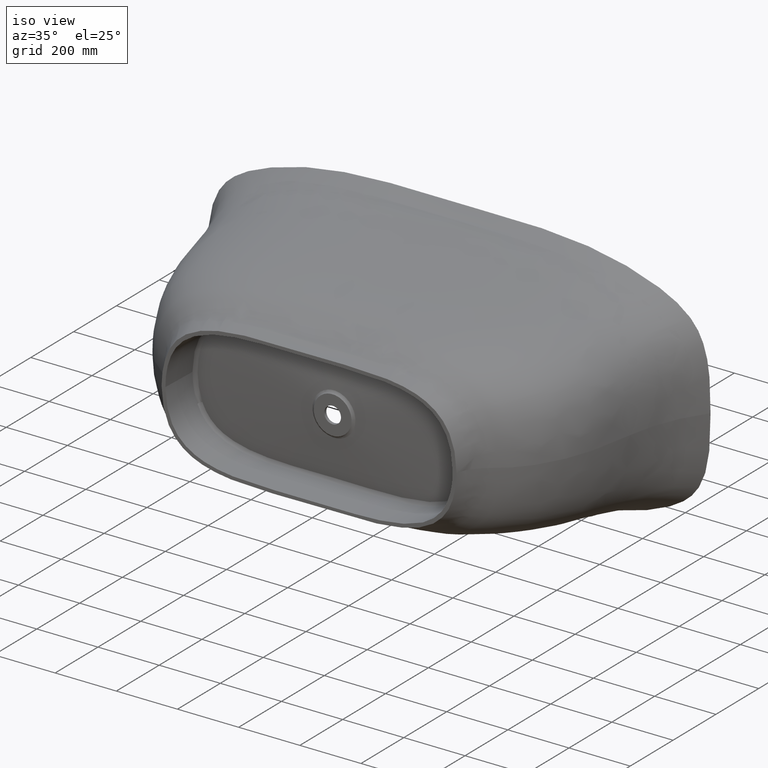
[diagram: clean part render]
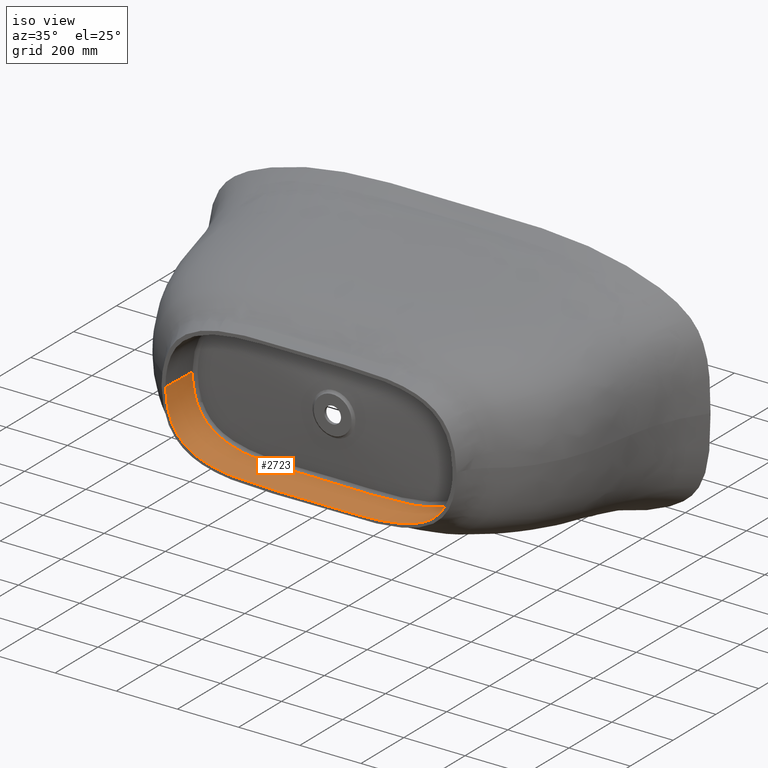
[diagram: same view with one face highlighted and labeled with its STEP entity id]
A machine part, iso view. The second image highlights one B-rep face of the part: STEP entity #2723.
In plain terms, the highlighted face is a freeform B-spline surface patch.
Its self-contained STEP definition (entity closure, byte-faithful):
#62 = VERTEX_POINT ( 'NONE', #833 ) ;
#68 = CARTESIAN_POINT ( 'NONE',  ( -376.7715608276849366, -710.0119999999998299, 174.5475347990533237 ) ) ;
#145 = CARTESIAN_POINT ( 'NONE',  ( 413.0075981817260526, 206.6638280830873668, 101.3229049751743247 ) ) ;
#197 = CARTESIAN_POINT ( 'NONE',  ( 451.5978029508832492, -710.0119999999998299, 96.68693294296983254 ) ) ;
#320 = CARTESIAN_POINT ( 'NONE',  ( 51.10891648714869007, 206.6638280830873668, -178.2907600852788903 ) ) ;
#442 = CARTESIAN_POINT ( 'NONE',  ( 434.2111648860996524, 206.6638280830873668, -43.33343164907506662 ) ) ;
#562 = CARTESIAN_POINT ( 'NONE',  ( -309.2671364566074885, 206.6638280830873668, -164.4931734671001777 ) ) ;
#679 = CARTESIAN_POINT ( 'NONE',  ( 435.1167577818082464, 206.6638280830873668, -37.98907658660973397 ) ) ;
#740 = B_SPLINE_CURVE_WITH_KNOTS ( 'NONE', 3,
 ( #24088, #4762, #29822, #26889, #18567, #1827, #21386, #27010, #10261, #13202, #24447, #15884, #18690, #24327, #7570, #10379, #32753, #13697, #2434, #10873, #13824, #25070, #30063, #22122, #7807, #13323, #30439, #35698, #36068, #19306, #36196, #32999, #35818, #2185, #19430, #33384, #18930, #7933, #32875, #21745, #10621, #22249, #2686, #33253, #30565, #21868, #19177, #16497, #8316, #2310, #5505, #5002, #27492, #16123, #30183, #27746, #5128, #27871, #24947, #2561, #33125, #16623, #8061, #5382, #24570, #24696, #27370, #13446 ),
 .UNSPECIFIED., .F., .F.,
 ( 4, 2, 2, 2, 2, 2, 2, 2, 2, 2, 2, 2, 2, 2, 2, 2, 2, 2, 2, 2, 2, 2, 2, 2, 2, 2, 2, 2, 2, 2, 2, 2, 2, 4 ),
 ( 1.171030030559101931, 1.189394131130387944, 1.207758231701673957, 1.244486432844246204, 1.262850533415532217, 1.281214633986818230, 1.299578734558104243, 1.317942835129390478, 1.354671036271962503, 1.373035136843248516, 1.391399237414534529, 1.428127438557106554, 1.464855639699678802, 1.538312041984823075, 1.611768444269967127, 1.758681248840255673, 1.832137651125399946, 1.905594053410544220, 1.979050455695688271, 2.015778656838260297, 2.052506857980832322, 2.089235059123404792, 2.125963260265976817, 2.162691461408548843, 2.181055561979834856, 2.199419662551120869, 2.236147863693693338, 2.254511964264978907, 2.272876064836265364, 2.291240165407550933, 2.309604265978837390, 2.327968366550123402, 2.337150416835766187, 2.346332467121409415 ),
 .UNSPECIFIED. ) ;
#797 = CARTESIAN_POINT ( 'NONE',  ( -386.7503391534006596, 206.6638280830873668, -130.5836772688949168 ) ) ;
#833 = CARTESIAN_POINT ( 'NONE',  ( 469.6507923050826321, -700.0000000000000000, -1.170464676888103668E-14 ) ) ;
#1108 = CARTESIAN_POINT ( 'NONE',  ( -449.2222300053399522, -579.8923364608669999, -90.34202000697848689 ) ) ;
#1225 = EDGE_CURVE ( 'NONE', #14040, #21337, #8265, .T. ) ;
#1295 = CARTESIAN_POINT ( 'NONE',  ( 385.7898970565166223, -580.0271890706776503, -164.1198892603063655 ) ) ;
#1528 = CARTESIAN_POINT ( 'NONE',  ( 350.2917764492672177, -580.1592021301165687, -180.7665865444316751 ) ) ;
#1640 = CARTESIAN_POINT ( 'NONE',  ( -267.3878075354082284, -580.6178877477559581, -200.1047884652582241 ) ) ;
#1756 = CARTESIAN_POINT ( 'NONE',  ( -327.7184947631772047, -580.2644924022574742, -187.9671111690548742 ) ) ;
#1827 = CARTESIAN_POINT ( 'NONE',  ( -465.3831138142517148, -700.0000000009308678, -50.10130807530593700 ) ) ;
#1878 = CARTESIAN_POINT ( 'NONE',  ( 257.6393538196663826, -580.6882929592369464, -200.8595457994952937 ) ) ;
#1890 = CARTESIAN_POINT ( 'NONE',  ( -442.8801519056331699, -710.0119999999998299, -113.8693873188649803 ) ) ;
#1969 = CARTESIAN_POINT ( 'NONE',  ( -405.0374128871990820, 206.6638280830873668, 112.3316356310609905 ) ) ;
#1997 = CARTESIAN_POINT ( 'NONE',  ( 23.11207708383593484, -581.4733453004566854, -205.5700859492820598 ) ) ;
#2010 = CARTESIAN_POINT ( 'NONE',  ( 99.83273113172840851, -710.0119999999998299, -210.7794236655307714 ) ) ;
#2114 = CARTESIAN_POINT ( 'NONE',  ( 67.85441177709203942, -581.4449887686803322, -205.9790307968852403 ) ) ;
#2128 = CARTESIAN_POINT ( 'NONE',  ( 465.7144026054029382, -710.0119999999998299, -49.06768608442181545 ) ) ;
#2185 = CARTESIAN_POINT ( 'NONE',  ( 99.83570284118538041, -700.0000000009308678, -210.4298092682498975 ) ) ;
#2205 = CARTESIAN_POINT ( 'NONE',  ( -464.2683220892531040, -579.8685786443345478, -25.68061428983065397 ) ) ;
#2241 = CARTESIAN_POINT ( 'NONE',  ( 370.5083966522484502, 206.6638280830873668, 141.5463057779118401 ) ) ;
#2250 = CARTESIAN_POINT ( 'NONE',  ( -340.4308519345618151, -710.0119999999998299, -189.1221887014439176 ) ) ;
#2310 = CARTESIAN_POINT ( 'NONE',  ( 417.0224432563376240, -700.0000000012749979, -145.8916457999397949 ) ) ;
#2360 = CARTESIAN_POINT ( 'NONE',  ( -439.5181817240568876, -579.9081545547177257, -110.5779058334051967 ) ) ;
#2374 = CARTESIAN_POINT ( 'NONE',  ( -428.6277953097380191, -710.0119999999998299, -134.0811464241357385 ) ) ;
#2434 = CARTESIAN_POINT ( 'NONE',  ( -385.5285151820851866, -700.0000000009308678, -169.1357594928779520 ) ) ;
#2502 = CARTESIAN_POINT ( 'NONE',  ( 335.2705097751384073, -710.0119999999998299, 190.5244770372285359 ) ) ;
#2536 = CARTESIAN_POINT ( 'NONE',  ( 298.9020689738924261, 206.6638280830873668, 166.7462151283372123 ) ) ;
#2561 = CARTESIAN_POINT ( 'NONE',  ( 465.3703219540391274, -700.0000000009308678, -49.00505614083378703 ) ) ;
#2627 = CARTESIAN_POINT ( 'NONE',  ( -429.8324375745133352, -710.0119999999998299, 132.6227375921745306 ) ) ;
#2686 = CARTESIAN_POINT ( 'NONE',  ( 319.3081902804913170, -700.0000000009308678, -194.6626758063067086 ) ) ;
#2723 = ADVANCED_FACE ( 'NONE', ( #7960 ), #32079, .T. ) ;
#2754 = CARTESIAN_POINT ( 'NONE',  ( -469.2832082572735430, -710.0119999999998299, 23.65710744243231289 ) ) ;
#2877 = CARTESIAN_POINT ( 'NONE',  ( 429.0055452929105400, -710.0119999999998299, 133.6233990386152470 ) ) ;
#3006 = CARTESIAN_POINT ( 'NONE',  ( 449.0421103843530659, -710.0119999999998299, 102.2989032286504880 ) ) ;
#3129 = CARTESIAN_POINT ( 'NONE',  ( 371.6297284518327615, 206.6638280837683510, -140.8760741786070412 ) ) ;
#3251 = CARTESIAN_POINT ( 'NONE',  ( -355.8009598001967220, 206.6638280830873668, -148.8268574109796418 ) ) ;
#3325 = CARTESIAN_POINT ( 'NONE',  ( 394.6936839480367780, 206.6638280830873668, 123.8049497156852965 ) ) ;
#3331 = CARTESIAN_POINT ( 'NONE',  ( -243.3758129338796721, 206.6638280830873668, 174.9356512454158690 ) ) ;
#3488 = CARTESIAN_POINT ( 'NONE',  ( 100.1048140549735450, 206.6638280830873668, -178.7695288226389607 ) ) ;
#3609 = CARTESIAN_POINT ( 'NONE',  ( -193.4540397969544472, 206.6638280830873668, -178.0418489021328128 ) ) ;
#3846 = CARTESIAN_POINT ( 'NONE',  ( -432.0309691188997476, 206.6638280830873668, -54.78058173366508044 ) ) ;
#3876 = CARTESIAN_POINT ( 'NONE',  ( 453.8760278282592822, -579.8857599918808319, -77.75756323281433424 ) ) ;
#3969 = CARTESIAN_POINT ( 'NONE',  ( -437.7651495002796196, 206.6638280830873668, -11.92612308491679407 ) ) ;
#3996 = CARTESIAN_POINT ( 'NONE',  ( 429.7157192622809134, -579.9278064847279666, -125.2534361444775897 ) ) ;
#3998 = VERTEX_POINT ( 'NONE', #20470 ) ;
#4114 = CARTESIAN_POINT ( 'NONE',  ( 365.8956696617936473, -580.0947037987308477, -174.4145806252917623 ) ) ;
#4229 = CARTESIAN_POINT ( 'NONE',  ( 461.8276096911876039, -579.8736542866081436, -44.84871929742513430 ) ) ;
#4426 = CARTESIAN_POINT ( 'NONE',  ( -465.4261335481315882, -579.8654594194154015, -8.583302500603108953 ) ) ;
#4427 = CARTESIAN_POINT ( 'NONE',  ( -395.1934297502932054, 206.6638280830873668, 122.9220936701846512 ) ) ;
#4457 = CARTESIAN_POINT ( 'NONE',  ( 101.4111077318885492, -581.3908928093683244, -206.2856292831119731 ) ) ;
#4574 = CARTESIAN_POINT ( 'NONE',  ( 285.1889428826188464, -580.5169050472334220, -197.0696332942816582 ) ) ;
#4693 = CARTESIAN_POINT ( 'NONE',  ( 290.6770695643294289, -580.4832722375901994, -196.1533356229200251 ) ) ;
#4706 = CARTESIAN_POINT ( 'NONE',  ( 469.7474604085684859, -710.0119999999998299, -12.33077517495434172 ) ) ;
#4762 = CARTESIAN_POINT ( 'NONE',  ( -469.6263412104416943, -700.0000000009308678, -7.215691214491513072 ) ) ;
#4781 = CARTESIAN_POINT ( 'NONE',  ( -462.1351874121161813, -579.8730554080030970, -42.76389297169192361 ) ) ;
#4811 = CARTESIAN_POINT ( 'NONE',  ( 34.29767283040294501, -581.4700490096952308, -205.6551655339907256 ) ) ;
#4825 = CARTESIAN_POINT ( 'NONE',  ( -194.5810571540745855, -710.0119999999998299, -210.0434240200954434 ) ) ;
#4933 = CARTESIAN_POINT ( 'NONE',  ( -359.4118292855064283, -580.1169273283660459, -177.1592711902859207 ) ) ;
#4946 = CARTESIAN_POINT ( 'NONE',  ( -304.4100161311009742, -710.0119999999998299, -198.3060038446835733 ) ) ;
#5002 = CARTESIAN_POINT ( 'NONE',  ( 433.5432442905049015, -700.0000000009308678, -127.9402543853558569 ) ) ;
#5067 = CARTESIAN_POINT ( 'NONE',  ( 458.3259158283414081, -710.0119999999998299, -78.78457047389275658 ) ) ;
#5128 = CARTESIAN_POINT ( 'NONE',  ( 457.9929550194078161, -700.0000000009308678, -78.67747490082760464 ) ) ;
#5179 = CARTESIAN_POINT ( 'NONE',  ( -442.7932835725847553, -579.9024252033120774, -104.3904115867348281 ) ) ;
#5193 = CARTESIAN_POINT ( 'NONE',  ( 470.0004190493203282, -710.0119999999998299, -3.113315183662955565 ) ) ;
#5323 = CARTESIAN_POINT ( 'NONE',  ( 195.8877148743748364, -710.0119999999998299, 209.9964221297430242 ) ) ;
#5382 = CARTESIAN_POINT ( 'NONE',  ( 469.2468251778417425, -700.0000000009308678, -15.38721870381839274 ) ) ;
#5449 = CARTESIAN_POINT ( 'NONE',  ( -433.6520187748400303, -710.0119999999998299, 127.7515051962391226 ) ) ;
#5505 = CARTESIAN_POINT ( 'NONE',  ( 421.3773514608559481, -700.0000000009308678, -141.5814187130685298 ) ) ;
#5573 = CARTESIAN_POINT ( 'NONE',  ( -417.2470554092918746, -710.0119999999998299, 146.1601025167655337 ) ) ;
#5696 = CARTESIAN_POINT ( 'NONE',  ( -466.1143436967118987, -710.0119999999998299, 48.02998063619369162 ) ) ;
#5822 = CARTESIAN_POINT ( 'NONE',  ( -463.2291411489552502, -710.0119999999998299, -62.16992978657786040 ) ) ;
#5944 = CARTESIAN_POINT ( 'NONE',  ( 26.47748165279315913, 206.6638280830873668, -178.0025676026139365 ) ) ;
#5959 = EDGE_CURVE ( 'NONE', #36241, #21337, #22322, .T. ) ;
#6062 = CARTESIAN_POINT ( 'NONE',  ( 437.6309417614261292, 206.6638280830873668, -13.65484256954129805 ) ) ;
#6178 = CARTESIAN_POINT ( 'NONE',  ( 437.7651585276921082, 206.6638280830873668, -10.93058686483883157 ) ) ;
#6297 = CARTESIAN_POINT ( 'NONE',  ( -240.7461678798429148, 206.6638280830873668, -175.1687831752788327 ) ) ;
#6371 = CARTESIAN_POINT ( 'NONE',  ( -196.1330460264973397, 206.6638280830873668, 177.9447013065093017 ) ) ;
#6415 = CARTESIAN_POINT ( 'NONE',  ( 437.0937308264972216, 206.6638280830873668, -21.81627388730440842 ) ) ;
#6536 = CARTESIAN_POINT ( 'NONE',  ( -422.0141140688901373, 206.6638280830873668, -84.40244761440479238 ) ) ;
#6686 = CARTESIAN_POINT ( 'NONE',  ( 443.2398015776858529, -579.9016719277833545, -103.7252260431782815 ) ) ;
#6891 = CARTESIAN_POINT ( 'NONE',  ( -425.8496574863975752, 206.6638280830873668, -74.82405177100073956 ) ) ;
#7032 = CARTESIAN_POINT ( 'NONE',  ( 458.3948689134163033, -579.8792574936298934, -61.41318380089658291 ) ) ;
#7146 = CARTESIAN_POINT ( 'NONE',  ( 460.2396962383921846, -579.8763613739398579, -53.14668473114883795 ) ) ;
#7260 = CARTESIAN_POINT ( 'NONE',  ( -144.6726928367856715, -581.2590716326940310, -206.3282309912752623 ) ) ;
#7381 = CARTESIAN_POINT ( 'NONE',  ( 317.9705392422570185, -580.3226474693539103, -190.5025531830395096 ) ) ;
#7470 = CARTESIAN_POINT ( 'NONE',  ( -416.0670175694640989, 206.6638280830873668, 96.24455456513663876 ) ) ;
#7476 = ORIENTED_EDGE ( 'NONE', *, *, #24449, .T. ) ;
#7502 = CARTESIAN_POINT ( 'NONE',  ( -300.5127417120835958, -580.4175878552071026, -194.3378496214392044 ) ) ;
#7515 = CARTESIAN_POINT ( 'NONE',  ( 468.3830927258120482, -710.0119999999998299, -30.74749118690845862 ) ) ;
#7570 = CARTESIAN_POINT ( 'NONE',  ( -428.3598642619951420, -700.0000000009308678, -133.8560371254002348 ) ) ;
#7617 = CARTESIAN_POINT ( 'NONE',  ( 334.2025646217946928, -580.2364298058516852, -186.0652522621431331 ) ) ;
#7631 = CARTESIAN_POINT ( 'NONE',  ( 456.3742722023170586, -710.0119999999998299, -84.57675315907397362 ) ) ;
#7739 = CARTESIAN_POINT ( 'NONE',  ( -413.6409867017333681, -579.9587384611231755, -143.1570581818149037 ) ) ;
#7807 = CARTESIAN_POINT ( 'NONE',  ( -304.3406722153810051, -700.0000000009308678, -197.9632005025495403 ) ) ;
#7871 = CARTESIAN_POINT ( 'NONE',  ( 234.6565481645623663, -710.0119999999998299, -207.5582430806442176 ) ) ;
#7933 = CARTESIAN_POINT ( 'NONE',  ( 234.6294861013568323, -700.0000000009308678, -207.2096347927199815 ) ) ;
#7960 = FACE_OUTER_BOUND ( 'NONE', #28480, .T. ) ;
#7988 = CARTESIAN_POINT ( 'NONE',  ( -419.6099333786487477, -579.9470588759581915, -137.2205394612107625 ) ) ;
#8002 = CARTESIAN_POINT ( 'NONE',  ( 283.4413892755522966, -710.0120000013565686, -202.0549941645710419 ) ) ;
#8061 = CARTESIAN_POINT ( 'NONE',  ( 468.6410576021798988, -700.0000000009308678, -24.59017823152164439 ) ) ;
#8132 = CARTESIAN_POINT ( 'NONE',  ( 440.0257461509974632, -710.0119999999998299, 118.5441119428513730 ) ) ;
#8259 = CARTESIAN_POINT ( 'NONE',  ( -172.7179911900752529, -710.0119999999998299, 210.5586310801554930 ) ) ;
#8265 = B_SPLINE_CURVE_WITH_KNOTS ( 'NONE', 1,
 ( #34583, #23568 ),
 .UNSPECIFIED., .F., .F.,
 ( 2, 2 ),
 ( 0.01092207266001174459, 0.1419767800771736255 ),
 .UNSPECIFIED. ) ;
#8316 = CARTESIAN_POINT ( 'NONE',  ( 407.7144207497324828, -700.0000000005867378, -154.0398921242728250 ) ) ;
#8385 = CARTESIAN_POINT ( 'NONE',  ( -469.9759376271804285, -710.0119999999998299, -7.224642196947212547 ) ) ;
#8460 = CARTESIAN_POINT ( 'NONE',  ( 387.3205162740773631, 206.6638280830873668, 130.1422732645711733 ) ) ;
#8510 = CARTESIAN_POINT ( 'NONE',  ( 443.2603073232933752, -710.0119999999998299, 113.2183061456617565 ) ) ;
#8636 = CARTESIAN_POINT ( 'NONE',  ( -342.3000884177357648, -710.0119999999998299, 188.5231508773760254 ) ) ;
#8709 = CARTESIAN_POINT ( 'NONE',  ( 415.5615623674073049, 206.6638280830873668, 97.12229928624009290 ) ) ;
#8874 = CARTESIAN_POINT ( 'NONE',  ( -47.87346585173015967, 206.6638280830873668, -177.9643574846142258 ) ) ;
#8991 = CARTESIAN_POINT ( 'NONE',  ( 232.1788075332324013, 206.6638280830873668, -175.6404653100376549 ) ) ;
#9022 = CARTESIAN_POINT ( 'NONE',  ( 309.9493405875854251, 206.6638280830873668, 164.3332257016086828 ) ) ;
#9107 = CARTESIAN_POINT ( 'NONE',  ( 172.7911373261564734, 206.6638280830873668, -178.5369828138542232 ) ) ;
#9183 = CARTESIAN_POINT ( 'NONE',  ( -99.44287270154667624, 206.6638280830873668, 179.1693412993126628 ) ) ;
#9228 = CARTESIAN_POINT ( 'NONE',  ( 427.8407854570991731, 206.6638280830873668, -68.97914467158830121 ) ) ;
#9466 = CARTESIAN_POINT ( 'NONE',  ( -434.2191840685160287, 206.6638280830873668, -44.32510263780221749 ) ) ;
#9495 = CARTESIAN_POINT ( 'NONE',  ( 465.4555982706609711, -579.8653610554046054, -5.661633878815812260 ) ) ;
#9611 = CARTESIAN_POINT ( 'NONE',  ( 403.2328052066667965, -579.9822172731124965, -152.0995075921980799 ) ) ;
#9612 = CARTESIAN_POINT ( 'NONE',  ( 331.4336817512447624, 206.6638280830873668, 158.2013507170423452 ) ) ;
#9702 = CARTESIAN_POINT ( 'NONE',  ( -432.4487401663842547, 206.6638280830873668, 53.00740847665335309 ) ) ;
#9770 = EDGE_CURVE ( 'NONE', #14040, #62, #740, .T. ) ;
#9843 = CARTESIAN_POINT ( 'NONE',  ( 447.9952321220227986, -579.8940414755428492, -93.54558275710118664 ) ) ;
#9886 = CARTESIAN_POINT ( 'NONE',  ( -50.32603199098451086, 206.6638280830873668, 177.9998177437112759 ) ) ;
#9958 = CARTESIAN_POINT ( 'NONE',  ( 459.6625911467256742, -579.8772993646599616, -55.90681867373864833 ) ) ;
#10072 = CARTESIAN_POINT ( 'NONE',  ( -167.0448976726247565, -581.1711430444427151, -206.0525289556422592 ) ) ;
#10102 = ORIENTED_EDGE ( 'NONE', *, *, #9770, .T. ) ;
#10159 = CARTESIAN_POINT ( 'NONE',  ( -452.0839559198024062, -579.8882210871305460, -83.25948372639628303 ) ) ;
#10192 = CARTESIAN_POINT ( 'NONE',  ( -311.4669632688495540, -580.3538070120908969, -192.0281082956828413 ) ) ;
#10261 = CARTESIAN_POINT ( 'NONE',  ( -455.6377039697582632, -700.0000000009308678, -85.60593332692542390 ) ) ;
#10281 = CARTESIAN_POINT ( 'NONE',  ( -426.3779023973058315, 206.6638280830873668, 73.34050088551477131 ) ) ;
#10311 = CARTESIAN_POINT ( 'NONE',  ( -333.0833038139313089, -580.2367470854809426, -186.4397416658948714 ) ) ;
#10324 = CARTESIAN_POINT ( 'NONE',  ( 354.4705200640512430, -710.0119999999998299, -184.3261277120644195 ) ) ;
#10379 = CARTESIAN_POINT ( 'NONE',  ( -415.7233698053328226, -700.0000000009308678, -147.6567374608010539 ) ) ;
#10430 = CARTESIAN_POINT ( 'NONE',  ( -364.5672954308617477, -580.0966988080142528, -174.9375259355892922 ) ) ;
#10444 = CARTESIAN_POINT ( 'NONE',  ( 246.8788748203795933, -710.0120000006817236, -206.5289856301548639 ) ) ;
#10518 = CARTESIAN_POINT ( 'NONE',  ( -469.6489197588156799, -700.0000000000000000, -1.026521867004593913 ) ) ;
#10552 = CARTESIAN_POINT ( 'NONE',  ( -426.9902663581880802, -579.9326067767026416, -128.8830122281640058 ) ) ;
#10564 = CARTESIAN_POINT ( 'NONE',  ( -316.6001646556476885, -710.0119999999998299, -195.6759926075354770 ) ) ;
#10601 = ORIENTED_EDGE ( 'NONE', *, *, #13426, .T. ) ;
#10621 = CARTESIAN_POINT ( 'NONE',  ( 283.3878382794098343, -700.0000000022877202, -201.7093661794739887 ) ) ;
#10674 = CARTESIAN_POINT ( 'NONE',  ( -416.6672716192622943, -579.9527955178289176, -140.2193239983809008 ) ) ;
#10687 = CARTESIAN_POINT ( 'NONE',  ( -243.5014258625560331, -710.0119999999998299, -207.0714403032904727 ) ) ;
#10815 = CARTESIAN_POINT ( 'NONE',  ( -385.7026859569031103, -710.0119999999998299, -169.4391138519382025 ) ) ;
#10873 = CARTESIAN_POINT ( 'NONE',  ( -374.5688619978899965, -700.0000000009308678, -174.9788711862006494 ) ) ;
#10926 = CARTESIAN_POINT ( 'NONE',  ( -444.6796239020138728, -579.8992853209974783, -100.6204435961592196 ) ) ;
#10943 = CARTESIAN_POINT ( 'NONE',  ( -469.7475358132333554, -710.0119999999998299, -13.45370005044425099 ) ) ;
#11071 = CARTESIAN_POINT ( 'NONE',  ( -465.7272471687770121, -710.0119999999998299, -50.16509287298240594 ) ) ;
#11195 = CARTESIAN_POINT ( 'NONE',  ( -306.6436628577872625, -710.0119999999998299, 197.8440270463048876 ) ) ;
#11323 = CARTESIAN_POINT ( 'NONE',  ( -98.98745972474389987, -710.0119999999998299, 211.1853945095407994 ) ) ;
#11451 = CARTESIAN_POINT ( 'NONE',  ( -458.5670728764282558, -710.0119999999998299, 78.03999808910157299 ) ) ;
#11571 = CARTESIAN_POINT ( 'NONE',  ( -341.1149128451457955, 206.6638280830873668, -155.0877447992606903 ) ) ;
#11648 = CARTESIAN_POINT ( 'NONE',  ( -362.3530196875227034, 206.6638280830873668, 145.9151289602578743 ) ) ;
#11764 = CARTESIAN_POINT ( 'NONE',  ( -172.0821237486206599, 206.6638280830873668, 178.5518545505606482 ) ) ;
#11805 = CARTESIAN_POINT ( 'NONE',  ( 196.7403793648122985, 206.6638280830873668, -177.9221074294414393 ) ) ;
#11927 = CARTESIAN_POINT ( 'NONE',  ( -394.1960627451845198, 206.6638280830873668, -124.2833768290894199 ) ) ;
#12045 = CARTESIAN_POINT ( 'NONE',  ( 413.5603663743934817, 206.6638280830873668, -101.0003083958711443 ) ) ;
#12361 = CARTESIAN_POINT ( 'NONE',  ( 170.7482744215075172, 206.6638280830873668, 178.5779317664690780 ) ) ;
#12405 = CARTESIAN_POINT ( 'NONE',  ( -437.9676890416158130, 206.6638280830873668, -6.405110709182587847 ) ) ;
#12432 = CARTESIAN_POINT ( 'NONE',  ( 355.5539885433111635, -580.1363599890952401, -178.7713096120784542 ) ) ;
#12548 = CARTESIAN_POINT ( 'NONE',  ( 457.3628825119071735, -579.8808114033855645, -65.53405984602805745 ) ) ;
#12661 = CARTESIAN_POINT ( 'NONE',  ( 421.0629035241050815, -579.9452192158853450, -136.2719544011458481 ) ) ;
#12773 = CARTESIAN_POINT ( 'NONE',  ( 323.3963119934342672, -580.2928043476533730, -189.1331661592213038 ) ) ;
#12890 = CARTESIAN_POINT ( 'NONE',  ( -245.1691967272961108, -580.7592665484545478, -202.3450523163674859 ) ) ;
#13009 = CARTESIAN_POINT ( 'NONE',  ( 224.3535987773494753, -580.8894060514104467, -203.7641869337706169 ) ) ;
#13131 = CARTESIAN_POINT ( 'NONE',  ( -348.9922063069421370, -580.1608000362787152, -181.2422504125896410 ) ) ;
#13145 = CARTESIAN_POINT ( 'NONE',  ( 342.8749923086414242, -710.0119999999998299, -188.3323995335479992 ) ) ;
#13202 = CARTESIAN_POINT ( 'NONE',  ( -451.0109480245071722, -700.0000000009308678, -97.16020207074650727 ) ) ;
#13252 = CARTESIAN_POINT ( 'NONE',  ( 268.6881056934769845, -580.6188950282588621, -199.5536602680595593 ) ) ;
#13323 = CARTESIAN_POINT ( 'NONE',  ( -267.8768235592785345, -700.0000000009308678, -204.3504323337100175 ) ) ;
#13342 = CARTESIAN_POINT ( 'NONE',  ( -449.2222300053399522, -579.8923364608669999, -90.34202000697848689 ) ) ;
#13374 = CARTESIAN_POINT ( 'NONE',  ( -447.0625514985928817, -579.8955143556077019, -95.51141320004128943 ) ) ;
#13386 = CARTESIAN_POINT ( 'NONE',  ( 417.2633697734539169, -710.0120000003440737, -146.1454037360204552 ) ) ;
#13426 = EDGE_CURVE ( 'NONE', #3998, #36241, #17604, .T. ) ;
#13446 = CARTESIAN_POINT ( 'NONE',  ( 469.6507923050826321, -700.0000000000000000, -1.170464676888103668E-14 ) ) ;
#13497 = CARTESIAN_POINT ( 'NONE',  ( -448.1743713313312583, -579.8938433592193178, -92.93538404582091061 ) ) ;
#13510 = CARTESIAN_POINT ( 'NONE',  ( -406.5110684780586325, -710.0119999999998299, -155.8726990529084162 ) ) ;
#13638 = CARTESIAN_POINT ( 'NONE',  ( -439.6501699260051055, -710.0119999999998299, -119.1247187404515699 ) ) ;
#13697 = CARTESIAN_POINT ( 'NONE',  ( -390.8986537229084774, -700.0000000009308678, -165.9365121143151214 ) ) ;
#13750 = CARTESIAN_POINT ( 'NONE',  ( -445.2887444049438272, -579.8983063008238332, -99.34670762599920124 ) ) ;
#13767 = CARTESIAN_POINT ( 'NONE',  ( 463.4141375939136651, -710.0119999999998299, 61.41714567541310998 ) ) ;
#13824 = CARTESIAN_POINT ( 'NONE',  ( -368.9876500831740600, -700.0000000009308678, -177.6236690127888096 ) ) ;
#13893 = CARTESIAN_POINT ( 'NONE',  ( -246.2482478354382636, -710.0119999999998299, 206.8285876641177481 ) ) ;
#14017 = CARTESIAN_POINT ( 'NONE',  ( -354.1328888757051345, -710.0119999999998299, 184.4521688813153730 ) ) ;
#14040 = VERTEX_POINT ( 'NONE', #10518 ) ;
#14141 = CARTESIAN_POINT ( 'NONE',  ( 341.2204984172340687, -710.0119999999998299, 188.6881669565896971 ) ) ;
#14263 = CARTESIAN_POINT ( 'NONE',  ( 398.6271954685706191, 206.6638280830873668, -119.5219788282310276 ) ) ;
#14340 = CARTESIAN_POINT ( 'NONE',  ( 420.1609611131617612, 206.6638280830873668, 88.43596267641500219 ) ) ;
#14502 = CARTESIAN_POINT ( 'NONE',  ( -298.0610457584403434, 206.6638280830873668, -166.9197136379692665 ) ) ;
#14618 = CARTESIAN_POINT ( 'NONE',  ( 469.6507923050826321, -700.0000000000000000, -1.170464676888103668E-14 ) ) ;
#14621 = CARTESIAN_POINT ( 'NONE',  ( 300.8962860673952378, 206.6638280844440771, -166.3307167674072105 ) ) ;
#14741 = CARTESIAN_POINT ( 'NONE',  ( 278.5383825098554667, 206.6638280817306565, -170.4100861065406036 ) ) ;
#14770 = CARTESIAN_POINT ( 'NONE',  ( 326.1205940650193043, 206.6638280830873668, 159.8429838511552532 ) ) ;
#15029 = CARTESIAN_POINT ( 'NONE',  ( 426.0046947535179243, 206.6638280830873668, 74.38954370638366242 ) ) ;
#15119 = CARTESIAN_POINT ( 'NONE',  ( 436.1320933480221811, -579.9150438543742894, -115.9678241661668636 ) ) ;
#15209 = CARTESIAN_POINT ( 'NONE',  ( -437.3512837691027357, 206.6638280830873668, 20.97646211231088742 ) ) ;
#15235 = CARTESIAN_POINT ( 'NONE',  ( 440.5898492472704788, -579.9064327922244502, -108.7023236243475424 ) ) ;
#15465 = CARTESIAN_POINT ( 'NONE',  ( 398.7057259037257495, -579.9928779353364234, -155.5165468544317946 ) ) ;
#15578 = CARTESIAN_POINT ( 'NONE',  ( 157.3389999765993821, -581.2217414054423443, -206.2006824687796609 ) ) ;
#15694 = CARTESIAN_POINT ( 'NONE',  ( 307.0849096568882146, -580.3849038873810287, -192.9936375736988907 ) ) ;
#15782 = CARTESIAN_POINT ( 'NONE',  ( -460.1678014301100461, -579.8764531234266997, -54.01787732204501680 ) ) ;
#15813 = CARTESIAN_POINT ( 'NONE',  ( -294.9955346624987556, -580.4506074919095227, -195.3812120250186979 ) ) ;
#15827 = CARTESIAN_POINT ( 'NONE',  ( 449.3814383481744699, -710.0119999999998299, -101.5903015495301531 ) ) ;
#15859 = CARTESIAN_POINT ( 'NONE',  ( 427.6912519732538840, 206.6638280830873668, 69.44981992155773298 ) ) ;
#15884 = CARTESIAN_POINT ( 'NONE',  ( -442.5784790240611528, -700.0000000009308678, -113.6921206802009436 ) ) ;
#15902 = CARTESIAN_POINT ( 'NONE',  ( -463.4466178800059879, -579.8704314657909435, -33.29666203240227418 ) ) ;
#15904 = CARTESIAN_POINT ( 'NONE',  ( -408.0177404132803076, 206.6638280830873668, 108.5312090191739571 ) ) ;
#15933 = CARTESIAN_POINT ( 'NONE',  ( -211.7394814922083413, -580.9510980665205579, -204.5244278131555973 ) ) ;
#15946 = CARTESIAN_POINT ( 'NONE',  ( 421.6285741905140299, -710.0119999999998299, -141.8250140846553506 ) ) ;
#16051 = CARTESIAN_POINT ( 'NONE',  ( -66.37283659772624844, -581.4440553684864881, -205.9963415277324259 ) ) ;
#16065 = CARTESIAN_POINT ( 'NONE',  ( 50.75543084269978067, -710.0119999999998299, -210.2998594919752691 ) ) ;
#16096 = CARTESIAN_POINT ( 'NONE',  ( 241.9472322200774386, 206.6638280830873668, 175.0628495708235732 ) ) ;
#16123 = CARTESIAN_POINT ( 'NONE',  ( 449.0652729482571317, -700.0000000009308678, -101.4404063030927432 ) ) ;
#16186 = CARTESIAN_POINT ( 'NONE',  ( 307.4848727722190347, -710.0119999986432049, -197.6680779624766728 ) ) ;
#16301 = CARTESIAN_POINT ( 'NONE',  ( 361.3951397840218647, 206.6638280830873668, 146.3932942861572144 ) ) ;
#16311 = CARTESIAN_POINT ( 'NONE',  ( 451.9022309582962862, -710.0119999999998299, -95.97967949593977721 ) ) ;
#16439 = CARTESIAN_POINT ( 'NONE',  ( 358.6678646208911232, -710.0119999999998299, 182.4283650701507895 ) ) ;
#16497 = CARTESIAN_POINT ( 'NONE',  ( 402.8415558619838066, -700.0000000012714736, -157.8068854256846976 ) ) ;
#16550 = CARTESIAN_POINT ( 'NONE',  ( -415.6696813392838976, -579.9547444801889924, -141.2067245524772545 ) ) ;
#16566 = CARTESIAN_POINT ( 'NONE',  ( 469.1878448875093000, -710.0119999999998299, 24.79798711144105994 ) ) ;
#16623 = CARTESIAN_POINT ( 'NONE',  ( 468.0354919854023024, -700.0000000009308678, -30.70905709843546560 ) ) ;
#16697 = CARTESIAN_POINT ( 'NONE',  ( -456.5950258950674652, -710.0119999999998299, 83.95783656400939776 ) ) ;
#16820 = CARTESIAN_POINT ( 'NONE',  ( 407.2243033051691441, -710.0119999999998299, 155.3217646827990279 ) ) ;
#16903 = CARTESIAN_POINT ( 'NONE',  ( -371.4057322921738091, 206.6638280830873668, 141.0184681827912527 ) ) ;
#16946 = CARTESIAN_POINT ( 'NONE',  ( 171.3573675339696933, -710.0119999999998299, 210.5851531161135313 ) ) ;
#17069 = CARTESIAN_POINT ( 'NONE',  ( 124.4608766653847596, 206.6638280830873668, -178.9652422824786697 ) ) ;
#17189 = CARTESIAN_POINT ( 'NONE',  ( 470.0004190488882045, -710.0119999999998299, 12.45326073465176897 ) ) ;
#17306 = CARTESIAN_POINT ( 'NONE',  ( 362.6386673074537725, 206.6638280830873668, -145.7709685941773046 ) ) ;
#17424 = CARTESIAN_POINT ( 'NONE',  ( 243.8933009564347287, 206.6638280824055300, -174.6517249187144785 ) ) ;
#17542 = CARTESIAN_POINT ( 'NONE',  ( 387.8230184782317451, 206.6638280834314969, -129.3738241764677070 ) ) ;
#17604 = B_SPLINE_CURVE_WITH_KNOTS ( 'NONE', 3,
 ( #35037, #9495, #34569, #20618, #23671, #31867, #4229, #7146, #9958, #29283, #7032, #26592, #12548, #20736, #3876, #23439, #9843, #6686, #15235, #18044, #15119, #26249, #29049, #29398, #3996, #12661, #32215, #9611, #34691, #17926, #15465, #23556, #29167, #1295, #18272, #21083, #4114, #12432, #1528, #24018, #35265, #29749, #21317, #7617, #32328, #12773, #7381, #15694, #26940, #4693, #4574, #13252, #1878, #18618, #13009, #24139, #35626, #26820, #15578, #21555, #35149, #4457, #27059, #2114, #24257, #4811, #1997, #29512, #18384, #32445, #18859, #21199, #16051, #24376, #27179, #18499, #7260, #10072, #29628, #21437, #15933, #12890, #1640, #15813, #7502, #10192, #32564, #1756, #10311, #29872, #13131, #21675, #4933, #32684, #10430, #35385, #35505, #18740, #29992, #24498, #32803, #27300, #7739, #16550, #10674, #7988, #30491, #10552, #35868, #24748, #2360, #5179, #30114, #10926, #13750, #13374, #13497, #36122 ),
 .UNSPECIFIED., .F., .F.,
 ( 4, 2, 2, 2, 2, 2, 2, 2, 2, 2, 2, 2, 2, 2, 2, 2, 2, 2, 2, 2, 2, 2, 2, 2, 2, 2, 2, 2, 2, 2, 2, 2, 2, 2, 2, 2, 2, 2, 2, 2, 2, 2, 2, 2, 2, 2, 2, 2, 2, 2, 2, 2, 2, 2, 2, 2, 2, 2, 4 ),
 ( 4.028750265771317230E-08, 0.01685896250851787528, 0.03371788472953309024, 0.05057680695054829478, 0.05900626806105592481, 0.06322099861630973983, 0.06743572917156356872, 0.08429465139257895367, 0.1011535736135943664, 0.1180124958346097652, 0.1222272263898636080, 0.1264419569451174785, 0.1348714180556251363, 0.1685892624976557397, 0.1728039930529094714, 0.1770187236081632032, 0.1854481847186706944, 0.2023071069396857602, 0.2191660291607007982, 0.2360249513817158362, 0.2402396819369695680, 0.2444544124922233275, 0.2528838736027308465, 0.2697427958237458290, 0.2866017180447608670, 0.3034606402657759050, 0.3371784847078059810, 0.3708963291498360570, 0.4046141735918661331, 0.4383320180338962646, 0.4720498624759262851, 0.5057677069179563611, 0.5394855513599863261, 0.5732033958020164022, 0.5900623180230314402, 0.6069212402440463672, 0.6743569291281065192, 0.7080747735701365952, 0.7417926180121666713, 0.7755104624541967473, 0.8092283068962268233, 0.8766639957802870864, 0.8935229180013021244, 0.9103818402223172734, 0.9272407624433323114, 0.9440996846643474605, 0.9525291457748549240, 0.9567438763301089333, 0.9609586068853628316, 0.9778175291063783137, 1.011535373548409167, 1.015750104103662954, 1.019964834658916741, 1.028394295769424316, 1.045253217990439021, 1.062112140211453948, 1.066326870766707513, 1.070541601321961300, 1.078971062432468653 ),
 .UNSPECIFIED. ) ;
#17658 = CARTESIAN_POINT ( 'NONE',  ( -412.7146389163410163, 206.6638280830873668, -101.7759198513376901 ) ) ;
#17926 = CARTESIAN_POINT ( 'NONE',  ( 399.8524610464653506, -579.9901115678778751, -154.6749646175635746 ) ) ;
#17974 = CARTESIAN_POINT ( 'NONE',  ( 194.7275021715206549, 206.6638280830873668, 177.9957715577747877 ) ) ;
#18044 = CARTESIAN_POINT ( 'NONE',  ( 436.8910858549209024, -579.9135631937564312, -114.7637325656791916 ) ) ;
#18245 = CARTESIAN_POINT ( 'NONE',  ( -398.6282168188930655, 206.6638280830873668, 119.5236122220628943 ) ) ;
#18272 = CARTESIAN_POINT ( 'NONE',  ( 380.9229119585666581, -580.0420066040486518, -166.9071053269806271 ) ) ;
#18384 = CARTESIAN_POINT ( 'NONE',  ( 0.7408406952306366700, -581.4744287303702777, -205.5070934308252220 ) ) ;
#18499 = CARTESIAN_POINT ( 'NONE',  ( -133.4868026879342153, -581.2966175400678139, -206.3723008300783022 ) ) ;
#18567 = CARTESIAN_POINT ( 'NONE',  ( -467.9038668865814543, -700.0000000009308678, -31.87253912284706558 ) ) ;
#18618 = CARTESIAN_POINT ( 'NONE',  ( 235.4723821234363754, -580.8234510586407850, -202.9668598572876874 ) ) ;
#18631 = CARTESIAN_POINT ( 'NONE',  ( 26.21697727519888588, -710.0119999999998299, -210.0134632443684950 ) ) ;
#18664 = CARTESIAN_POINT ( 'NONE',  ( 432.1881376053652843, 206.6638280830873668, 54.14046342116574095 ) ) ;
#18665 = CARTESIAN_POINT ( 'NONE',  ( 265.1545975140037967, 206.6638280830873668, 172.7330578792899303 ) ) ;
#18690 = CARTESIAN_POINT ( 'NONE',  ( -439.3559780992089827, -700.0000000009308678, -118.9352338984383550 ) ) ;
#18709 = CARTESIAN_POINT ( 'NONE',  ( -465.0901953577788390, -579.8665675604695480, -16.17230530198018812 ) ) ;
#18740 = CARTESIAN_POINT ( 'NONE',  ( -374.7550617217690956, -580.0593628278353435, -170.1783746858745019 ) ) ;
#18753 = CARTESIAN_POINT ( 'NONE',  ( 271.2904218517898016, -710.0119999993179363, -203.7753515167056833 ) ) ;
#18859 = CARTESIAN_POINT ( 'NONE',  ( -16.03762089288666459, -581.4720130543737469, -205.5466625684790358 ) ) ;
#18930 = CARTESIAN_POINT ( 'NONE',  ( 197.9417805514008819, -700.0000000009308678, -209.5717094821017383 ) ) ;
#18993 = CARTESIAN_POINT ( 'NONE',  ( -267.9191086011388165, -710.0119999999998299, -204.6979754744710647 ) ) ;
#19117 = CARTESIAN_POINT ( 'NONE',  ( 469.9496952927768234, -710.0119999999998299, -6.171498238065130870 ) ) ;
#19177 = CARTESIAN_POINT ( 'NONE',  ( 387.7268946512371599, -700.0000000002498837, -168.2359998012782967 ) ) ;
#19244 = CARTESIAN_POINT ( 'NONE',  ( -402.9803237092872337, -710.0119999999998299, 158.1432571644157861 ) ) ;
#19306 = CARTESIAN_POINT ( 'NONE',  ( -96.51358938210455563, -700.0000000009308678, -210.7971465428672957 ) ) ;
#19375 = CARTESIAN_POINT ( 'NONE',  ( -443.8998050028677085, -710.0119999999998299, 112.1069931526887729 ) ) ;
#19430 = CARTESIAN_POINT ( 'NONE',  ( 124.3782205587823597, -700.0000000009308678, -210.6286162428551449 ) ) ;
#19497 = CARTESIAN_POINT ( 'NONE',  ( -318.5973947225786560, -710.0119999999998299, 195.1989258242997209 ) ) ;
#19621 = CARTESIAN_POINT ( 'NONE',  ( 416.5985496700815247, -710.0119999999998299, 147.3018540341341520 ) ) ;
#19748 = CARTESIAN_POINT ( 'NONE',  ( 456.1503384803901326, -710.0119999999998299, 85.20913640475687600 ) ) ;
#19874 = CARTESIAN_POINT ( 'NONE',  ( 383.9181793465625105, 206.6638280827468463, -132.3970445803627740 ) ) ;
#19995 = CARTESIAN_POINT ( 'NONE',  ( 395.2046887301774518, 206.6638280827432368, -122.9119073106297435 ) ) ;
#20076 = CARTESIAN_POINT ( 'NONE',  ( -266.5505300641153212, 206.6638280830873668, 172.5532612952308966 ) ) ;
#20116 = CARTESIAN_POINT ( 'NONE',  ( 436.5575637019385340, 206.6638280830873668, -27.22855392353668336 ) ) ;
#20234 = CARTESIAN_POINT ( 'NONE',  ( 343.1878058276263346, 206.6638280830873668, -154.3187122112347538 ) ) ;
#20354 = CARTESIAN_POINT ( 'NONE',  ( 311.8122712646908212, 206.6638280830873668, -163.8779976011840631 ) ) ;
#20470 = CARTESIAN_POINT ( 'NONE',  ( 465.4555974266906446, -579.8653368911828920, -1.796395688312304169E-13 ) ) ;
#20618 = CARTESIAN_POINT ( 'NONE',  ( 464.5946898889922068, -579.8678000089718125, -22.54109223749267699 ) ) ;
#20708 = CARTESIAN_POINT ( 'NONE',  ( -427.5412761108411814, 206.6638280830873668, -69.90374655483299193 ) ) ;
#20736 = CARTESIAN_POINT ( 'NONE',  ( 455.5362040853357257, -579.8835152440512957, -72.37063381665332429 ) ) ;
#21083 = CARTESIAN_POINT ( 'NONE',  ( 370.9757901916936476, -580.0757721289512574, -172.0544347824787792 ) ) ;
#21169 = CARTESIAN_POINT ( 'NONE',  ( -422.6541767686577487, 206.6638280830873668, 82.92419298499262936 ) ) ;
#21199 = CARTESIAN_POINT ( 'NONE',  ( -44.00176408787913829, -581.4628220818613045, -205.7084461031734293 ) ) ;
#21317 = CARTESIAN_POINT ( 'NONE',  ( 338.2409072141925890, -580.2163176303914724, -184.8130318617954515 ) ) ;
#21337 = VERTEX_POINT ( 'NONE', #22136 ) ;
#21386 = CARTESIAN_POINT ( 'NONE',  ( -462.8883924472151534, -700.0000000009308678, -62.08922279024133672 ) ) ;
#21437 = CARTESIAN_POINT ( 'NONE',  ( -200.5793021441945427, -581.0109330347005425, -205.0543948384161013 ) ) ;
#21450 = CARTESIAN_POINT ( 'NONE',  ( -448.7179067427137511, -710.0119999999998299, -102.9704235483567487 ) ) ;
#21555 = CARTESIAN_POINT ( 'NONE',  ( 134.9678177134432531, -581.3019223730384510, -206.3740900731231136 ) ) ;
#21644 = CARTESIAN_POINT ( 'NONE',  ( -454.4760199009130019, -579.8850778723572148, -76.04965880124174760 ) ) ;
#21675 = CARTESIAN_POINT ( 'NONE',  ( -356.8172717644165459, -580.1275490293483017, -178.2143399105773369 ) ) ;
#21689 = CARTESIAN_POINT ( 'NONE',  ( 387.9046505327240766, -710.0119999993188458, -168.5381267493529265 ) ) ;
#21745 = CARTESIAN_POINT ( 'NONE',  ( 271.2446514525257726, -700.0000000002489742, -203.4286704101454006 ) ) ;
#21769 = B_SPLINE_CURVE_WITH_KNOTS ( 'NONE', 1,
 ( #14618, #31366 ),
 .UNSPECIFIED., .F., .F.,
 ( 2, 2 ),
 ( 0.01092207266001174112, 0.1419767589824791065 ),
 .UNSPECIFIED. ) ;
#21808 = CARTESIAN_POINT ( 'NONE',  ( -374.7236624091325439, -710.0119999999998299, -175.2925528062814919 ) ) ;
#21868 = CARTESIAN_POINT ( 'NONE',  ( 376.9551599652936602, -700.0000000009308678, -174.0632831639687481 ) ) ;
#21935 = CARTESIAN_POINT ( 'NONE',  ( -432.5304766149534430, -710.0119999999998299, -129.2236647132848759 ) ) ;
#22064 = CARTESIAN_POINT ( 'NONE',  ( -457.9730908030451246, -710.0119999999998299, -79.87450686137262323 ) ) ;
#22122 = CARTESIAN_POINT ( 'NONE',  ( -316.5200727888473011, -700.0000000009308678, -195.3354115911713222 ) ) ;
#22136 = CARTESIAN_POINT ( 'NONE',  ( -465.4537521206082715, -579.8653175541863902, -1.011217595055670548 ) ) ;
#22191 = CARTESIAN_POINT ( 'NONE',  ( 375.6354396974643350, -710.0119999999998299, 175.1131802014122343 ) ) ;
#22249 = CARTESIAN_POINT ( 'NONE',  ( 307.4129117495088508, -699.9999999995742428, -197.3258090265629505 ) ) ;
#22316 = CARTESIAN_POINT ( 'NONE',  ( -421.6299484927498611, -710.0119999999998299, 141.8270291819625015 ) ) ;
#22322 = B_SPLINE_CURVE_WITH_KNOTS ( 'NONE', 3,
 ( #13342, #10159, #21644, #29717, #15782, #4781, #29840, #15902, #24346, #27147, #2205, #18709, #4426, #35353 ),
 .UNSPECIFIED., .F., .F.,
 ( 4, 2, 2, 2, 2, 2, 4 ),
 ( 1.078971062432468653, 1.101992112792824274, 1.125013163153180118, 1.136523688333358040, 1.142278950923446779, 1.148034213513535740, 1.171055263873891583 ),
 .UNSPECIFIED. ) ;
#22440 = CARTESIAN_POINT ( 'NONE',  ( 244.7559223981040759, -710.0119999999998299, 206.9611095582993414 ) ) ;
#22563 = CARTESIAN_POINT ( 'NONE',  ( -387.6318696402829573, -710.0119999999998299, 168.7113587139080835 ) ) ;
#22687 = CARTESIAN_POINT ( 'NONE',  ( 470.0004190492339262, -710.0119999999998299, -1.170938346284344789E-14 ) ) ;
#22807 = CARTESIAN_POINT ( 'NONE',  ( -360.5504906975330641, 206.6638280830873668, -146.5725808857055483 ) ) ;
#22929 = CARTESIAN_POINT ( 'NONE',  ( 420.4340572247825776, 206.6638280830873668, -87.86623551212352368 ) ) ;
#23009 = CARTESIAN_POINT ( 'NONE',  ( -342.8897184544283618, 206.6638280830873668, 154.4305081901660230 ) ) ;
#23051 = CARTESIAN_POINT ( 'NONE',  ( -169.4926332158897253, 206.6638280830873668, -178.6009858531783721 ) ) ;
#23170 = CARTESIAN_POINT ( 'NONE',  ( -407.1401516357130959, 206.6638280830873668, -109.6830646402289489 ) ) ;
#23288 = CARTESIAN_POINT ( 'NONE',  ( -415.2596726256750230, 206.6638280830873668, -97.63925919221991023 ) ) ;
#23439 = CARTESIAN_POINT ( 'NONE',  ( 450.1044645187230913, -579.8910650300559837, -88.34459159310083010 ) ) ;
#23556 = CARTESIAN_POINT ( 'NONE',  ( 395.2451496261642205, -580.0014562816257921, -157.9869872028591544 ) ) ;
#23568 = CARTESIAN_POINT ( 'NONE',  ( -465.4537521206082715, -579.8653175541863902, -1.011217595055670548 ) ) ;
#23645 = CARTESIAN_POINT ( 'NONE',  ( -419.9021279730780520, 206.6638280830873668, -88.97189411100545442 ) ) ;
#23671 = CARTESIAN_POINT ( 'NONE',  ( 464.0797669447821363, -579.8690521765344101, -28.13965894727251182 ) ) ;
#23945 = CARTESIAN_POINT ( 'NONE',  ( 48.96199008148145992, 206.6638280830873668, 177.9791122490059081 ) ) ;
#24018 = CARTESIAN_POINT ( 'NONE',  ( 343.6138239571380950, -580.1903821364800251, -183.0599272113738891 ) ) ;
#24088 = CARTESIAN_POINT ( 'NONE',  ( -469.6489197588156799, -700.0000000000000000, -1.026521867004593913 ) ) ;
#24107 = CARTESIAN_POINT ( 'NONE',  ( -420.6067308759197658, 206.6638280830873668, 87.49938561781938517 ) ) ;
#24139 = CARTESIAN_POINT ( 'NONE',  ( 202.0663437207678328, -581.0128843859731660, -204.9982595431606853 ) ) ;
#24257 = CARTESIAN_POINT ( 'NONE',  ( 56.66884016118390832, -581.4558771965448614, -205.8597181563002607 ) ) ;
#24270 = CARTESIAN_POINT ( 'NONE',  ( 461.7464415289344402, -710.0119999999998299, -67.04619914387544100 ) ) ;
#24327 = CARTESIAN_POINT ( 'NONE',  ( -432.2531616406946569, -700.0000000009308678, -129.0102408594866006 ) ) ;
#24346 = CARTESIAN_POINT ( 'NONE',  ( -463.6728931290032847, -579.8699397420698460, -31.39121327460310695 ) ) ;
#24376 = CARTESIAN_POINT ( 'NONE',  ( -99.92962175042163153, -581.3843651937927461, -206.2790677766095087 ) ) ;
#24395 = ORIENTED_EDGE ( 'NONE', *, *, #5959, .T. ) ;
#24447 = CARTESIAN_POINT ( 'NONE',  ( -448.4031787132662430, -700.0000000009308678, -102.8175305927229033 ) ) ;
#24449 = EDGE_CURVE ( 'NONE', #62, #3998, #21769, .T. ) ;
#24498 = CARTESIAN_POINT ( 'NONE',  ( -394.1430398565564133, -580.0002623810883051, -159.1319415806804898 ) ) ;
#24511 = CARTESIAN_POINT ( 'NONE',  ( 433.8235890671600714, -710.0119999999998299, -128.1511962859513289 ) ) ;
#24570 = CARTESIAN_POINT ( 'NONE',  ( 469.3981473836236091, -700.0000000009308678, -12.31548221649498309 ) ) ;
#24635 = CARTESIAN_POINT ( 'NONE',  ( 377.1132524357739726, -710.0119999999998299, -174.3757061863418585 ) ) ;
#24696 = CARTESIAN_POINT ( 'NONE',  ( 469.6001314520697179, -700.0000000009308678, -6.163844138563238317 ) ) ;
#24748 = CARTESIAN_POINT ( 'NONE',  ( -436.6457944370940254, -579.9136400934788753, -115.3437011620127777 ) ) ;
#24762 = CARTESIAN_POINT ( 'NONE',  ( 173.4419899818327622, -710.0119999999998299, -210.5434975466171181 ) ) ;
#24889 = CARTESIAN_POINT ( 'NONE',  ( 305.3181586961943594, -710.0119999999998299, 198.1188288963832917 ) ) ;
#24947 = CARTESIAN_POINT ( 'NONE',  ( 462.8741443348554299, -700.0000000009308678, -61.02020594835733647 ) ) ;
#25015 = CARTESIAN_POINT ( 'NONE',  ( -197.3301436531468767, -710.0119999999998299, 209.9443455663459304 ) ) ;
#25070 = CARTESIAN_POINT ( 'NONE',  ( -351.9910353019126319, -700.0000000009308678, -184.8695869514492642 ) ) ;
#25138 = CARTESIAN_POINT ( 'NONE',  ( -270.5720764226641677, -710.0119999999998299, 204.3557170123249591 ) ) ;
#25262 = CARTESIAN_POINT ( 'NONE',  ( 432.8681253826135844, -710.0119999999998299, 128.7880643200475106 ) ) ;
#25388 = CARTESIAN_POINT ( 'NONE',  ( -449.5960451669452596, -710.0119999999998299, 101.1339251192229796 ) ) ;
#25511 = CARTESIAN_POINT ( 'NONE',  ( 437.9893937580873740, 206.6638280830873668, -1.127570259384924611E-14 ) ) ;
#25627 = CARTESIAN_POINT ( 'NONE',  ( 267.0997887464226892, 206.6638280837692037, -172.0340220654012171 ) ) ;
#25863 = CARTESIAN_POINT ( 'NONE',  ( -330.7871395589286294, 206.6638280830873668, -158.5748430905849489 ) ) ;
#25980 = CARTESIAN_POINT ( 'NONE',  ( 430.7659491812831334, 206.6638280830873668, -58.94072925276666552 ) ) ;
#26249 = CARTESIAN_POINT ( 'NONE',  ( 434.5857789227624153, -579.9180845713239023, -118.3429994847401474 ) ) ;
#26565 = CARTESIAN_POINT ( 'NONE',  ( -428.0462912726150648, 206.6638280830873668, 68.34492930775729747 ) ) ;
#26592 = CARTESIAN_POINT ( 'NONE',  ( 457.7158075387177973, -579.8802824439379719, -64.16083031256144409 ) ) ;
#26820 = CARTESIAN_POINT ( 'NONE',  ( 168.5246070194775712, -581.1750122561630860, -206.0326485560298124 ) ) ;
#26889 = CARTESIAN_POINT ( 'NONE',  ( -468.5366902529311233, -700.0000000009308678, -25.75450892715173978 ) ) ;
#26940 = CARTESIAN_POINT ( 'NONE',  ( 301.6250497830675954, -580.4172640784788655, -194.1153150618384302 ) ) ;
#26985 = CARTESIAN_POINT ( 'NONE',  ( 434.3665231187931113, 206.6638280830873668, 43.53788922230833691 ) ) ;
#27010 = CARTESIAN_POINT ( 'NONE',  ( -457.6407123118318054, -700.0000000009308678, -79.76560549283917112 ) ) ;
#27059 = CARTESIAN_POINT ( 'NONE',  ( 90.22554564889784956, -581.4125227511823368, -206.1918585430550479 ) ) ;
#27072 = CARTESIAN_POINT ( 'NONE',  ( 463.2146984472223608, -710.0119999999998299, -61.09981060359761784 ) ) ;
#27147 = CARTESIAN_POINT ( 'NONE',  ( -464.0836898506507850, -579.8690133925631471, -27.58338764438469681 ) ) ;
#27179 = CARTESIAN_POINT ( 'NONE',  ( -111.1152653532389536, -581.3592245454539125, -206.3484252749096015 ) ) ;
#27193 = CARTESIAN_POINT ( 'NONE',  ( -352.1111368595727527, -710.0119999999998299, -185.1984583526940469 ) ) ;
#27300 = CARTESIAN_POINT ( 'NONE',  ( -412.6080268296180975, -579.9607876508067648, -144.1216421741309546 ) ) ;
#27370 = CARTESIAN_POINT ( 'NONE',  ( 469.6507923052005822, -700.0000000009308678, -3.109513895617221024 ) ) ;
#27433 = CARTESIAN_POINT ( 'NONE',  ( 319.3909653277078746, -710.0119999999998299, -195.0026212068112557 ) ) ;
#27492 = CARTESIAN_POINT ( 'NONE',  ( 440.4538892630922078, -700.0000000009308678, -117.8948183501344289 ) ) ;
#27559 = CARTESIAN_POINT ( 'NONE',  ( 124.3773078137123491, -710.0119999999998299, -210.9782648008346939 ) ) ;
#27690 = CARTESIAN_POINT ( 'NONE',  ( 458.1484377524743650, -710.0119999999998299, 79.34388058510440089 ) ) ;
#27746 = CARTESIAN_POINT ( 'NONE',  ( 456.0446400695500984, -700.0000000009308678, -84.45966253543105040 ) ) ;
#27815 = CARTESIAN_POINT ( 'NONE',  ( -455.9666438834569249, -710.0119999999998299, -85.72499421232105021 ) ) ;
#27871 = CARTESIAN_POINT ( 'NONE',  ( 461.4080703405019790, -700.0000000009308678, -66.95767061278945675 ) ) ;
#27938 = CARTESIAN_POINT ( 'NONE',  ( -463.7129384721825431, -710.0119999999998299, 60.11251677318502118 ) ) ;
#28065 = CARTESIAN_POINT ( 'NONE',  ( -451.3311508301602544, -710.0119999999998299, -97.30108189152301179 ) ) ;
#28189 = CARTESIAN_POINT ( 'NONE',  ( 48.47933571084093529, -710.0119999999998299, 209.9902388874648977 ) ) ;
#28310 = CARTESIAN_POINT ( 'NONE',  ( -264.0475868505997141, 206.6638280830873668, -172.8777201427330397 ) ) ;
#28426 = CARTESIAN_POINT ( 'NONE',  ( -374.1933021961194186, 206.6638280830873668, -139.0167174282311180 ) ) ;
#28480 = EDGE_LOOP ( 'NONE', ( #30210, #10102, #7476, #10601, #24395 ) ) ;
#28545 = CARTESIAN_POINT ( 'NONE',  ( 426.1939078100746201, 206.6638280830873668, -73.85620337894629017 ) ) ;
#28620 = CARTESIAN_POINT ( 'NONE',  ( -300.1243034415785473, 206.6638280830873668, 166.4924798188114323 ) ) ;
#28661 = CARTESIAN_POINT ( 'NONE',  ( -369.7560080455028810, 206.6638280830873668, -141.6646823377527369 ) ) ;
#28779 = CARTESIAN_POINT ( 'NONE',  ( 422.4803247265309665, 206.6638280830873668, -83.32519350659273982 ) ) ;
#29021 = CARTESIAN_POINT ( 'NONE',  ( -437.0012911332370891, 206.6638280830873668, -22.84716189171707867 ) ) ;
#29049 = CARTESIAN_POINT ( 'NONE',  ( 433.7971809302717929, -579.9196470279219966, -119.5162171227180181 ) ) ;
#29076 = CARTESIAN_POINT ( 'NONE',  ( 437.2666125792728167, 206.6638280830873668, 21.98656674039889225 ) ) ;
#29167 = CARTESIAN_POINT ( 'NONE',  ( 392.9045162499209596, -580.0075670985992247, -159.5666582832791676 ) ) ;
#29283 = CARTESIAN_POINT ( 'NONE',  ( 458.7212907100238795, -579.8787599910939434, -60.03775498968662561 ) ) ;
#29371 = CARTESIAN_POINT ( 'NONE',  ( -438.0278175910123082, 206.6638280830873668, 10.07716265889139073 ) ) ;
#29398 = CARTESIAN_POINT ( 'NONE',  ( 431.3852310668265773, -579.9244499310893843, -122.9929149032801803 ) ) ;
#29512 = CARTESIAN_POINT ( 'NONE',  ( 6.333653644912197400, -581.4746439938289768, -205.5137129568785213 ) ) ;
#29628 = CARTESIAN_POINT ( 'NONE',  ( -178.2333815158703203, -581.1210481989354548, -205.8180658376932115 ) ) ;
#29674 = CARTESIAN_POINT ( 'NONE',  ( 437.9893937580873740, 206.6638280830873668, 11.06111176644151683 ) ) ;
#29717 = CARTESIAN_POINT ( 'NONE',  ( -458.5209599052380440, -579.8791270785458210, -61.42967336483336993 ) ) ;
#29749 = CARTESIAN_POINT ( 'NONE',  ( 339.5856244044157961, -580.2097209241287601, -184.3854729011717666 ) ) ;
#29797 = CARTESIAN_POINT ( 'NONE',  ( 422.2317319050425226, 206.6638280830873668, 83.90189123254600645 ) ) ;
#29822 = CARTESIAN_POINT ( 'NONE',  ( -469.3982218661152501, -700.0000000009308678, -13.43701574383455188 ) ) ;
#29840 = CARTESIAN_POINT ( 'NONE',  ( -462.7077108927383051, -579.8719718484112491, -38.98999641679800021 ) ) ;
#29842 = CARTESIAN_POINT ( 'NONE',  ( -413.5479107127032421, 206.6638280830873668, 100.4673205498271784 ) ) ;
#29872 = CARTESIAN_POINT ( 'NONE',  ( -343.7203029701750552, -580.1848877358482923, -183.0777870170594497 ) ) ;
#29992 = CARTESIAN_POINT ( 'NONE',  ( -379.7070645526574140, -580.0431469922885981, -167.5777900503175033 ) ) ;
#30006 = CARTESIAN_POINT ( 'NONE',  ( 469.5959493128638655, -710.0119999999998299, -15.40634878193281487 ) ) ;
#30063 = CARTESIAN_POINT ( 'NONE',  ( -340.3255226072927258, -700.0000000009308678, -188.7885483731426461 ) ) ;
#30114 = CARTESIAN_POINT ( 'NONE',  ( -443.4323563724811947, -579.9013440731037008, -103.1412699369560784 ) ) ;
#30126 = CARTESIAN_POINT ( 'NONE',  ( -369.1332665057238955, -710.0119999999998299, -177.9416630352698405 ) ) ;
#30183 = CARTESIAN_POINT ( 'NONE',  ( 451.5808827606667819, -700.0000000009308678, -95.84146628050189065 ) ) ;
#30210 = ORIENTED_EDGE ( 'NONE', *, *, #1225, .F. ) ;
#30249 = CARTESIAN_POINT ( 'NONE',  ( -391.0831256013378265, -710.0119999999998299, -166.2337788365814788 ) ) ;
#30380 = CARTESIAN_POINT ( 'NONE',  ( 407.9340751721930474, -710.0119999996556999, -154.3122716596870987 ) ) ;
#30439 = CARTESIAN_POINT ( 'NONE',  ( -243.4713327346745473, -700.0000000009308678, -206.7229971641232851 ) ) ;
#30491 = CARTESIAN_POINT ( 'NONE',  ( -421.5049665601650872, -579.9433801458467315, -135.1726242807726805 ) ) ;
#30508 = CARTESIAN_POINT ( 'NONE',  ( 269.0968913211044651, -710.0119999999998299, 204.5445260809489127 ) ) ;
#30565 = CARTESIAN_POINT ( 'NONE',  ( 354.3472894393702859, -700.0000000009308678, -183.9983845396556603 ) ) ;
#30635 = CARTESIAN_POINT ( 'NONE',  ( -468.8849256254883358, -710.0119999999998299, -25.78661383485229308 ) ) ;
#30759 = CARTESIAN_POINT ( 'NONE',  ( -440.7124892235196967, -710.0119999999998299, 117.4561899766809461 ) ) ;
#30835 = CARTESIAN_POINT ( 'NONE',  ( 404.3924502715297535, 206.6638280830873668, 113.1122612767874784 ) ) ;
#30885 = CARTESIAN_POINT ( 'NONE',  ( 97.64348065189554404, -710.0119999999998299, 211.1656313777136518 ) ) ;
#31008 = CARTESIAN_POINT ( 'NONE',  ( -49.83002638126175299, -710.0119999999998299, 210.0107402954032523 ) ) ;
#31131 = CARTESIAN_POINT ( 'NONE',  ( -96.97422426298432185, 206.6638280830873668, -179.1315306805394982 ) ) ;
#31211 = CARTESIAN_POINT ( 'NONE',  ( -332.4526374030341458, 206.6638280830873668, 158.0402187265591181 ) ) ;
#31250 = CARTESIAN_POINT ( 'NONE',  ( 408.1558623079617405, 206.6638280830873668, -108.8378381733100184 ) ) ;
#31366 = CARTESIAN_POINT ( 'NONE',  ( 465.4555974266906446, -579.8653368911828920, -1.796395688312304169E-13 ) ) ;
#31369 = CARTESIAN_POINT ( 'NONE',  ( 437.9893937580873740, 206.6638280830873668, -2.765277941610392531 ) ) ;
#31484 = CARTESIAN_POINT ( 'NONE',  ( -404.0966411865055647, 206.6638280830873668, -113.4706537306915806 ) ) ;
#31867 = CARTESIAN_POINT ( 'NONE',  ( 462.6959623271007445, -579.8719953761016086, -39.29344007571040009 ) ) ;
#32074 = CARTESIAN_POINT ( 'NONE',  ( -436.4414087023799311, 206.6638280830873668, -28.25513535683091249 ) ) ;
#32079 = B_SPLINE_SURFACE_WITH_KNOTS ( 'NONE', 1, 3, ( 
 ( #35161, #5193, #19117, #4706, #30006, #35400, #7515, #32697, #2128, #27072, #24270, #5067, #7631, #16311, #15827, #32939, #24511, #15946, #13386, #30380, #35518, #21689, #24635, #10324, #13145, #27433, #16186, #8002, #18753, #10444, #7871, #32817, #24762, #27559, #2010, #16065, #18631, #35881, #35640, #35760, #4825, #10687, #18993, #4946, #10564, #2250, #27193, #30126, #21808, #10815, #30249, #13510, #33064, #2374, #21935, #13638, #1890, #21450, #28065, #27815, #22064, #5822, #11071, #36262, #30635, #10943, #8385, #33453, #2754, #5696, #27938, #11451, #16697, #36139, #25388, #19375, #30759, #5449, #2627, #22316, #5573, #33705, #19244, #22563, #68, #14017, #8636, #19497, #11195, #25138, #13893, #25015, #8259, #11323, #31008, #28189, #30885, #16946, #5323, #22440, #30508, #24889, #33194, #2502, #14141, #33578, #16439, #22191, #36009, #16820, #19621, #2877, #25262, #8132, #8510, #3006, #197, #19748, #27690, #13767, #33325, #16566, #17189, #22687 ),
 ( #25511, #31369, #34305, #6178, #6062, #6415, #20116, #679, #442, #34183, #25980, #9228, #28545, #28779, #22929, #12045, #31250, #14263, #19995, #17542, #19874, #3129, #17306, #20234, #33828, #20354, #14621, #14741, #25627, #17424, #8991, #11805, #9107, #17069, #3488, #320, #5944, #8874, #31131, #23051, #3609, #6297, #28310, #14502, #562, #25863, #11571, #3251, #22807, #28661, #28426, #797, #11927, #31484, #23170, #17658, #23288, #23645, #6536, #6891, #20708, #3846, #9466, #32074, #29021, #3969, #12405, #29371, #15209, #34781, #9702, #26565, #10281, #21169, #24107, #7470, #29842, #15904, #1969, #18245, #4427, #35595, #36092, #16903, #11648, #23009, #31211, #34027, #28620, #20076, #3331, #6371, #11764, #9183, #9886, #23945, #34617, #12361, #17974, #16096, #18665, #2536, #9022, #14770, #9612, #35389, #32929, #16301, #2241, #8460, #3325, #30835, #33656, #145, #8709, #14340, #29797, #15029, #15859, #18664, #26985, #29076, #29674, #32490 ) ),
 .UNSPECIFIED., .F., .T., .F.,
 ( 2, 2 ),
 ( 4, 2, 2, 2, 2, 2, 2, 2, 2, 2, 2, 2, 2, 2, 2, 2, 2, 2, 2, 2, 2, 2, 2, 2, 2, 2, 2, 2, 2, 2, 2, 2, 2, 2, 2, 2, 2, 2, 2, 2, 2, 2, 2, 2, 2, 2, 2, 2, 2, 2, 2, 2, 2, 2, 2, 2, 2, 2, 2, 2, 2, 4 ),
 ( 0.0000000000000000000, 1.000000000000000000 ),
 ( 0.0000000000000000000, 0.003906250000000000000, 0.007812500000000000000, 0.01562500000000000000, 0.02343750000000000000, 0.03125000000000000000, 0.03906250000000000000, 0.04687500000000000000, 0.06250000000000000000, 0.07031250000000000000, 0.07812500000000000000, 0.09375000000000000000, 0.1093750000000000000, 0.1250000000000000000, 0.1406250000000000000, 0.1562500000000000000, 0.1875000000000000000, 0.2187500000000000000, 0.2500000000000000000, 0.3125000000000000000, 0.3437500000000000000, 0.3750000000000000000, 0.3906250000000000000, 0.4062500000000000000, 0.4140625000000000000, 0.4218750000000000000, 0.4375000000000000000, 0.4453125000000000000, 0.4531250000000000000, 0.4609375000000000000, 0.4687500000000000000, 0.4843750000000000000, 0.4921875000000000000, 0.5000000000000000000, 0.5156250000000000000, 0.5312500000000000000, 0.5390625000000000000, 0.5468750000000000000, 0.5546875000000000000, 0.5625000000000000000, 0.5703125000000000000, 0.5781250000000000000, 0.5937500000000000000, 0.6093750000000000000, 0.6250000000000000000, 0.6562500000000000000, 0.6875000000000000000, 0.7500000000000000000, 0.8125000000000000000, 0.8437500000000000000, 0.8750000000000000000, 0.8906250000000000000, 0.8984375000000000000, 0.9062500000000000000, 0.9218750000000000000, 0.9375000000000000000, 0.9453125000000000000, 0.9531250000000000000, 0.9609375000000000000, 0.9687500000000000000, 0.9843750000000000000, 1.000000000000000000 ),
 .UNSPECIFIED. ) ;
#32215 = CARTESIAN_POINT ( 'NONE',  ( 413.1598497742260747, -579.9599270894766505, -144.1739862803639483 ) ) ;
#32328 = CARTESIAN_POINT ( 'NONE',  ( 331.5047575650761473, -580.2502635715118231, -186.8595254184080261 ) ) ;
#32445 = CARTESIAN_POINT ( 'NONE',  ( -10.44479677459820977, -581.4731185510438536, -205.5241989658703972 ) ) ;
#32490 = CARTESIAN_POINT ( 'NONE',  ( 437.9893937580873740, 206.6638280830873668, -1.127570259384924611E-14 ) ) ;
#32564 = CARTESIAN_POINT ( 'NONE',  ( -316.9104060637969269, -580.3230197615752104, -190.7615650509962393 ) ) ;
#32684 = CARTESIAN_POINT ( 'NONE',  ( -363.2812495922440803, -580.1016680898883351, -175.5023180823091593 ) ) ;
#32697 = CARTESIAN_POINT ( 'NONE',  ( 466.7469728292160767, -710.0119999999998299, -42.96669775131552171 ) ) ;
#32753 = CARTESIAN_POINT ( 'NONE',  ( -406.2952403565799386, -700.0000000009308678, -155.5964905195084782 ) ) ;
#32803 = CARTESIAN_POINT ( 'NONE',  ( -403.2103094226887379, -579.9796896043163770, -152.6476883493084813 ) ) ;
#32817 = CARTESIAN_POINT ( 'NONE',  ( 197.9550472422143912, -710.0119999999998299, -209.9212059612889618 ) ) ;
#32875 = CARTESIAN_POINT ( 'NONE',  ( 246.8462661657087835, -700.0000000016127615, -206.1808198724947658 ) ) ;
#32929 = CARTESIAN_POINT ( 'NONE',  ( 346.7782082551615872, 206.6638280830873668, 152.6950525456598768 ) ) ;
#32939 = CARTESIAN_POINT ( 'NONE',  ( 440.7508658742641501, -710.0119999999998299, -118.0813790448560923 ) ) ;
#32999 = CARTESIAN_POINT ( 'NONE',  ( 26.21982252293895854, -700.0000000009308678, -209.6638379162897365 ) ) ;
#33064 = CARTESIAN_POINT ( 'NONE',  ( -415.9610890035515922, -710.0119999999998299, -147.9148420408827747 ) ) ;
#33125 = CARTESIAN_POINT ( 'NONE',  ( 466.4015053222486813, -700.0000000009308678, -42.91233181128565377 ) ) ;
#33194 = CARTESIAN_POINT ( 'NONE',  ( 317.3427535582266614, -710.0119999999998299, 195.5024437470829071 ) ) ;
#33253 = CARTESIAN_POINT ( 'NONE',  ( 342.7667138900016539, -700.0000000009308678, -187.9996979136942912 ) ) ;
#33325 = CARTESIAN_POINT ( 'NONE',  ( 465.8954353161909125, -710.0119999999998299, 49.26474285575964274 ) ) ;
#33384 = CARTESIAN_POINT ( 'NONE',  ( 173.4348813218371674, -700.0000000009308678, -210.1939200671446599 ) ) ;
#33453 = CARTESIAN_POINT ( 'NONE',  ( -470.0437572751373523, -710.0119999999998299, 11.36589242814650014 ) ) ;
#33578 = CARTESIAN_POINT ( 'NONE',  ( 352.9100384874797669, -710.0119999999998299, 184.6424645567866207 ) ) ;
#33656 = CARTESIAN_POINT ( 'NONE',  ( 407.4057459275593942, 206.6638280830873668, 109.3402489115239717 ) ) ;
#33705 = CARTESIAN_POINT ( 'NONE',  ( -407.9386453388698328, -710.0119999999998299, 154.3078532270751850 ) ) ;
#33828 = CARTESIAN_POINT ( 'NONE',  ( 332.9612678700253241, 206.6638280830873668, -157.8709999218459075 ) ) ;
#34027 = CARTESIAN_POINT ( 'NONE',  ( -311.0885307039497434, 206.6638280830873668, 164.0573394031596024 ) ) ;
#34183 = CARTESIAN_POINT ( 'NONE',  ( 432.0343425752552093, 206.6638280830873668, -53.81139038102029559 ) ) ;
#34305 = CARTESIAN_POINT ( 'NONE',  ( 437.9444292941852837, 206.6638280830873668, -5.470706388306753709 ) ) ;
#34569 = CARTESIAN_POINT ( 'NONE',  ( 465.2827431101976572, -579.8659559737025120, -11.30209655077921838 ) ) ;
#34583 = CARTESIAN_POINT ( 'NONE',  ( -469.6489197588156799, -700.0000000000000000, -1.026521867004593913 ) ) ;
#34617 = CARTESIAN_POINT ( 'NONE',  ( 98.10545404780867784, 206.6638280830873668, 179.1499756501497131 ) ) ;
#34691 = CARTESIAN_POINT ( 'NONE',  ( 402.1154732602186641, -579.9847826538386926, -152.9667875029861364 ) ) ;
#34781 = CARTESIAN_POINT ( 'NONE',  ( -434.5585723259117117, 206.6638280830873668, 42.45620682984667127 ) ) ;
#35037 = CARTESIAN_POINT ( 'NONE',  ( 465.4555974266906446, -579.8653368911828920, -1.796395688312304169E-13 ) ) ;
#35149 = CARTESIAN_POINT ( 'NONE',  ( 123.7822437065755850, -581.3355571401857560, -206.3767391356473127 ) ) ;
#35161 = CARTESIAN_POINT ( 'NONE',  ( 470.0004190492339262, -710.0119999999998299, -1.170938346284344789E-14 ) ) ;
#35265 = CARTESIAN_POINT ( 'NONE',  ( 342.2721098635854560, -580.1967532937408123, -183.5089249734200791 ) ) ;
#35353 = CARTESIAN_POINT ( 'NONE',  ( -465.4537521206082715, -579.8653175541863902, -1.011217595055670548 ) ) ;
#35385 = CARTESIAN_POINT ( 'NONE',  ( -367.1314751820416973, -580.0870050118552399, -173.7816989924877760 ) ) ;
#35389 = CARTESIAN_POINT ( 'NONE',  ( 341.7576943193888610, 206.6638280830873668, 154.6282518437102169 ) ) ;
#35400 = CARTESIAN_POINT ( 'NONE',  ( 468.9894246880447781, -710.0119999999998299, -24.62080957406721282 ) ) ;
#35505 = CARTESIAN_POINT ( 'NONE',  ( -368.4095552310037078, -580.0822821016024591, -173.1906492548592098 ) ) ;
#35518 = CARTESIAN_POINT ( 'NONE',  ( 403.0505206842102552, -710.0120000003403220, -158.0874782084113406 ) ) ;
#35595 = CARTESIAN_POINT ( 'NONE',  ( -387.8249797648815616, 206.6638280830873668, 129.3717766040370805 ) ) ;
#35626 = CARTESIAN_POINT ( 'NONE',  ( 190.8958906899277110, -581.0704823411521147, -205.4315296762753462 ) ) ;
#35640 = CARTESIAN_POINT ( 'NONE',  ( -96.50850273776727306, -710.0119999999998299, -211.1468198574563360 ) ) ;
#35698 = CARTESIAN_POINT ( 'NONE',  ( -194.5687477886121997, -700.0000000009308678, -209.6939004914547127 ) ) ;
#35760 = CARTESIAN_POINT ( 'NONE',  ( -170.0767736833738866, -710.0119999999998299, -210.6085942370556552 ) ) ;
#35818 = CARTESIAN_POINT ( 'NONE',  ( 50.75929163859236581, -700.0000000009308678, -209.9502537825063087 ) ) ;
#35868 = CARTESIAN_POINT ( 'NONE',  ( -430.3823032865466303, -579.9258175905238204, -124.4965950246879345 ) ) ;
#35881 = CARTESIAN_POINT ( 'NONE',  ( -47.40181036293137851, -710.0119999999998299, -209.9756293927417232 ) ) ;
#36009 = CARTESIAN_POINT ( 'NONE',  ( 386.5440363160648189, -710.0119999999998299, 169.3496471416617624 ) ) ;
#36068 = CARTESIAN_POINT ( 'NONE',  ( -170.0703936587449618, -700.0000000009308678, -210.2590048126462818 ) ) ;
#36092 = CARTESIAN_POINT ( 'NONE',  ( -383.8625826340461913, 206.6638280830873668, 132.4413659816971460 ) ) ;
#36122 = CARTESIAN_POINT ( 'NONE',  ( -449.2222300053399522, -579.8923364608669999, -90.34202000697848689 ) ) ;
#36139 = CARTESIAN_POINT ( 'NONE',  ( -452.1127700403358176, -710.0119999999998299, 95.49374560172435622 ) ) ;
#36196 = CARTESIAN_POINT ( 'NONE',  ( -47.40696181845005697, -700.0000000009308678, -209.6259999550542830 ) ) ;
#36241 = VERTEX_POINT ( 'NONE', #1108 ) ;
#36262 = CARTESIAN_POINT ( 'NONE',  ( -468.2512967956103012, -710.0119999999998299, -31.91248496096273612 ) ) ;